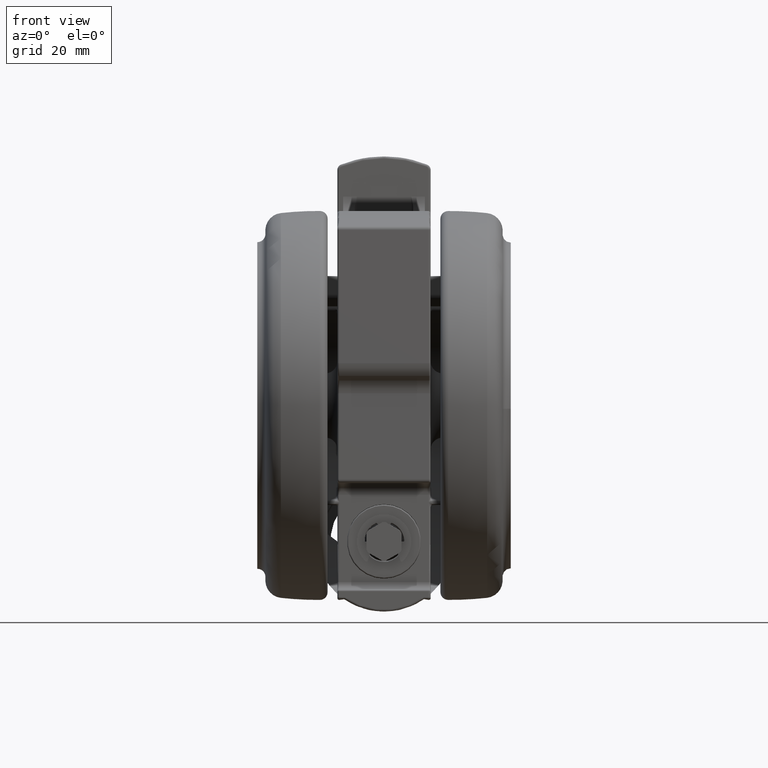
[diagram: clean part render]
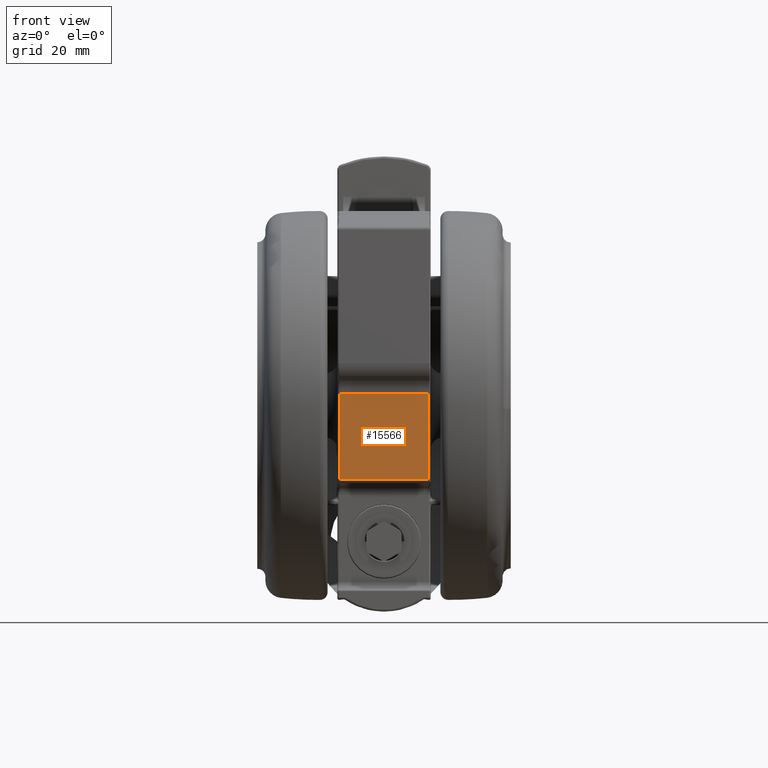
[diagram: same view with one face highlighted and labeled with its STEP entity id]
A machine part, front view. The second image highlights one B-rep face of the part: STEP entity #15566.
In plain terms, the highlighted planar face has unit normal (0, 1, -0).
Its self-contained STEP definition (entity closure, byte-faithful):
#1510 = LINE ( 'NONE', #29400, #81499 ) ;
#3116 = DIRECTION ( 'NONE',  ( 0.02026128721468460300, 0.9997947190500677800, 0.0000000000000000000 ) ) ;
#3562 = VERTEX_POINT ( 'NONE', #23434 ) ;
#8422 = VERTEX_POINT ( 'NONE', #38681 ) ;
#9490 = EDGE_CURVE ( 'NONE', #3562, #12527, #68875, .T. ) ;
#10364 = AXIS2_PLACEMENT_3D ( 'NONE', #55266, #23878, #67996 ) ;
#11122 = ORIENTED_EDGE ( 'NONE', *, *, #9490, .T. ) ;
#12527 = VERTEX_POINT ( 'NONE', #67452 ) ;
#14083 = CARTESIAN_POINT ( 'NONE',  ( 16.43360978059906700, -3.454994910075669600, -21.09999999999991300 ) ) ;
#14249 = EDGE_LOOP ( 'NONE', ( #29630, #11122, #43694, #58953 ) ) ;
#15566 = ADVANCED_FACE ( 'NONE', ( #51560 ), #29657, .F. ) ;
#20334 = EDGE_CURVE ( 'NONE', #12527, #8422, #1510, .T. ) ;
#21262 = VECTOR ( 'NONE', #3116, 1000.000000000000100 ) ;
#23434 = CARTESIAN_POINT ( 'NONE',  ( 16.88181628823127100, 18.66178842290899100, -21.09999999999991300 ) ) ;
#23878 = DIRECTION ( 'NONE',  ( -0.9997947190500678900, 0.02026128721468460600, 0.0000000000000000000 ) ) ;
#24014 = EDGE_CURVE ( 'NONE', #30211, #3562, #44130, .T. ) ;
#29400 = CARTESIAN_POINT ( 'NONE',  ( 16.43360978059906700, -3.454994910075669600, -44.59999999999991600 ) ) ;
#29630 = ORIENTED_EDGE ( 'NONE', *, *, #24014, .T. ) ;
#29657 = PLANE ( 'NONE',  #10364 ) ;
#30211 = VERTEX_POINT ( 'NONE', #67111 ) ;
#31346 = VECTOR ( 'NONE', #64656, 1000.000000000000100 ) ;
#38681 = CARTESIAN_POINT ( 'NONE',  ( 16.43360978059906700, -3.454994910075669600, -44.09999999999991600 ) ) ;
#39684 = EDGE_CURVE ( 'NONE', #8422, #30211, #54809, .T. ) ;
#42024 = DIRECTION ( 'NONE',  ( -0.0000000000000000000, 0.0000000000000000000, -1.000000000000000000 ) ) ;
#42799 = DIRECTION ( 'NONE',  ( 0.0000000000000000000, -0.0000000000000000000, 1.000000000000000000 ) ) ;
#43694 = ORIENTED_EDGE ( 'NONE', *, *, #20334, .T. ) ;
#44130 = LINE ( 'NONE', #74280, #75706 ) ;
#51560 = FACE_OUTER_BOUND ( 'NONE', #14249, .T. ) ;
#54809 = LINE ( 'NONE', #78743, #21262 ) ;
#55266 = CARTESIAN_POINT ( 'NONE',  ( 16.39554539507883700, -5.333284834292635800, -20.59999999999991300 ) ) ;
#58953 = ORIENTED_EDGE ( 'NONE', *, *, #39684, .T. ) ;
#64656 = DIRECTION ( 'NONE',  ( -0.02026128721468460300, -0.9997947190500677800, -0.0000000000000000000 ) ) ;
#67111 = CARTESIAN_POINT ( 'NONE',  ( 16.88181628823127100, 18.66178842290899100, -44.09999999999991600 ) ) ;
#67452 = CARTESIAN_POINT ( 'NONE',  ( 16.43360978059906700, -3.454994910075669600, -21.09999999999991300 ) ) ;
#67996 = DIRECTION ( 'NONE',  ( -0.02026128721468460300, -0.9997947190500677800, 0.0000000000000000000 ) ) ;
#68875 = LINE ( 'NONE', #14083, #31346 ) ;
#74280 = CARTESIAN_POINT ( 'NONE',  ( 16.88181628823127100, 18.66178842290899100, -20.59999999999991300 ) ) ;
#75706 = VECTOR ( 'NONE', #42799, 1000.000000000000000 ) ;
#78743 = CARTESIAN_POINT ( 'NONE',  ( 16.39554539507883700, -5.333284834292635800, -44.09999999999991600 ) ) ;
#81499 = VECTOR ( 'NONE', #42024, 1000.000000000000000 ) ;